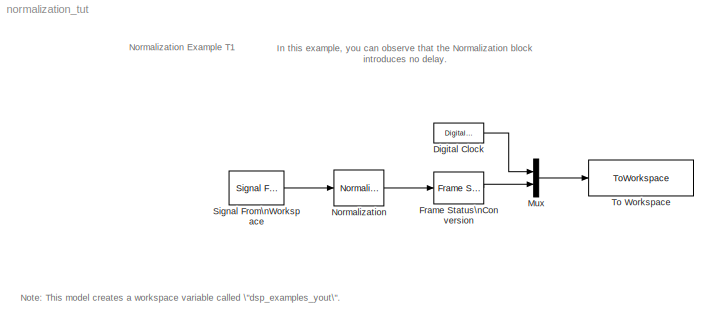
MODEL normalization_tut
KIND model
CONFIG AbsTol = auto
CONFIG FixedStep = auto
CONFIG MaxStep = auto
CONFIG MinStep = auto
CONFIG RelTol = 1e-3
CONFIG Solver = FixedStepDiscrete
CONFIG SolverMode = Auto
CONFIG StartTime = 0.0
CONFIG StopTime = 5
BLOCK [DigitalClock] Digital Clock
BLOCK [Reference] Frame Status\nConversion  REF=dspsigattribs/Frame Status\nConversion
  Ports = [1, 1]
  SourceBlock = dspsigattribs/Frame Status\nConversion
  SourceType = Frame Status Conversion
  growRefPort = off
  outframe = Sample-based
BLOCK [Mux] Mux
  DisplayOption = bar
  Inputs = 2
  Ports = [2, 1]
BLOCK [Reference] Normalization  REF=dspmathops/Normalization
  Bias = 1e-10
  NormType = Squared 2-norm
  Ports = [1, 1]
  SourceBlock = dspmathops/Normalization
  SourceType = Normalization
BLOCK [Reference] Signal From\nWorkspace  REF=dspsrcs4/Signal From\nWorkspace
  OutputAfterFinalValue = Setting to zero
  Ports = [0, 1]
  SourceBlock = dspsrcs4/Signal From\nWorkspace
  SourceType = Signal From Workspace
  Ts = 1/4
  X = 1:100
  nsamps = 4
BLOCK [ToWorkspace] To Workspace
  MaxDataPoints = inf
  SampleTime = -1
  SaveFormat = Array
  VariableName = dsp_examples_yout
ANNOTATION (root): In this example, you can observe that the Normalization block \nintroduces no delay.
ANNOTATION (root): Normalization Example T1
ANNOTATION (root): Note: This model creates a workspace variable called \"dsp_examples_yout\".
LINE Digital Clock:1 -> Mux:1
LINE Frame Status\nConversion:1 -> Mux:2
LINE Mux:1 -> To Workspace:1
LINE Normalization:1 -> Frame Status\nConversion:1
LINE Signal From\nWorkspace:1 -> Normalization:1
